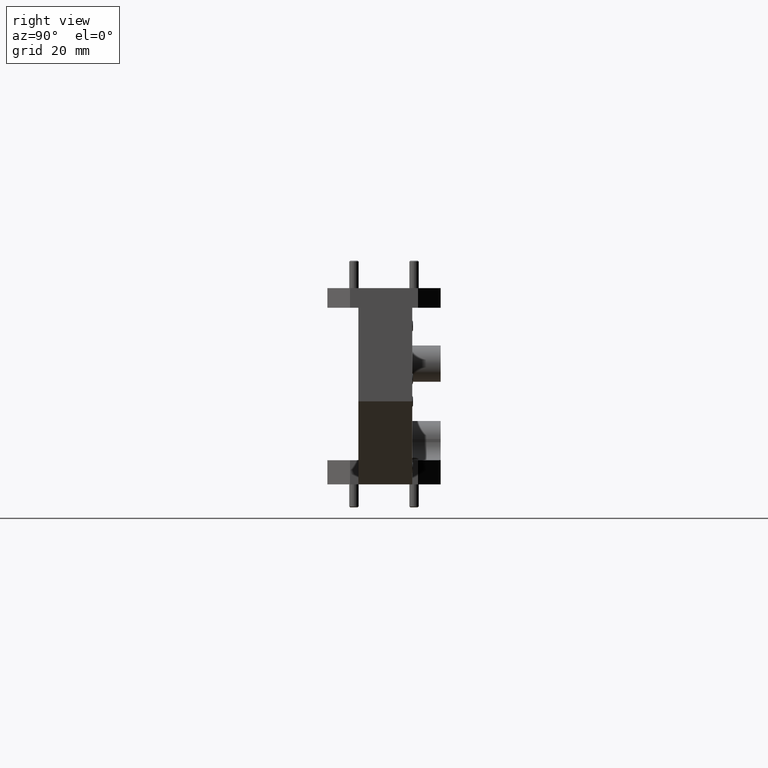
[diagram: clean part render]
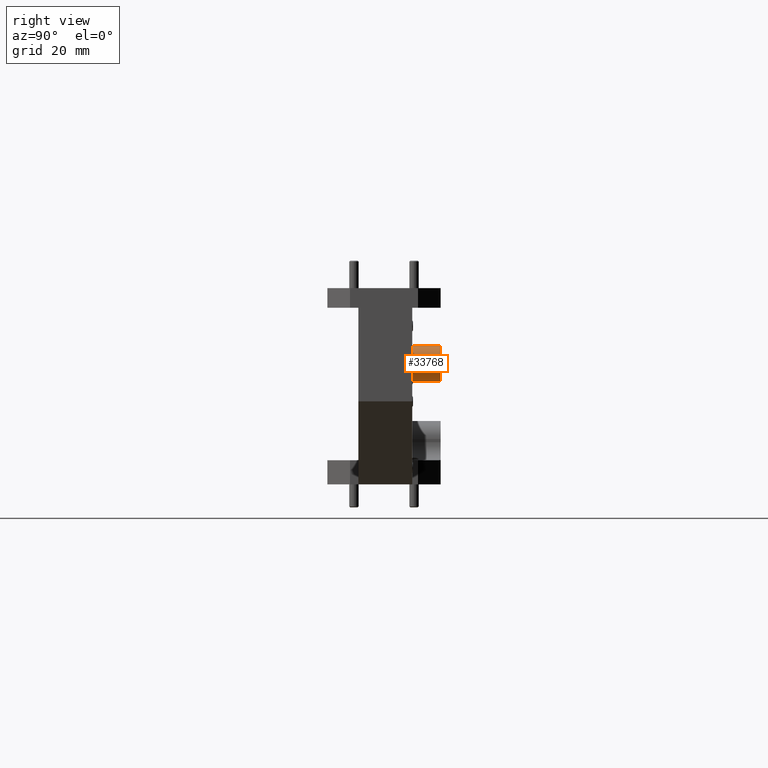
[diagram: same view with one face highlighted and labeled with its STEP entity id]
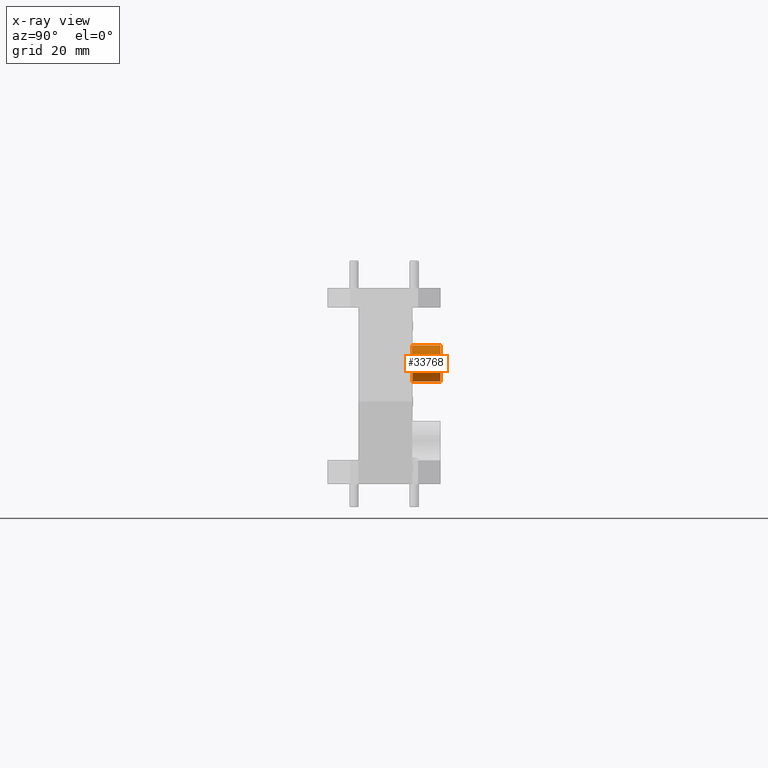
[diagram: x-ray of the same camera — body ghosted, the highlighted face saturated]
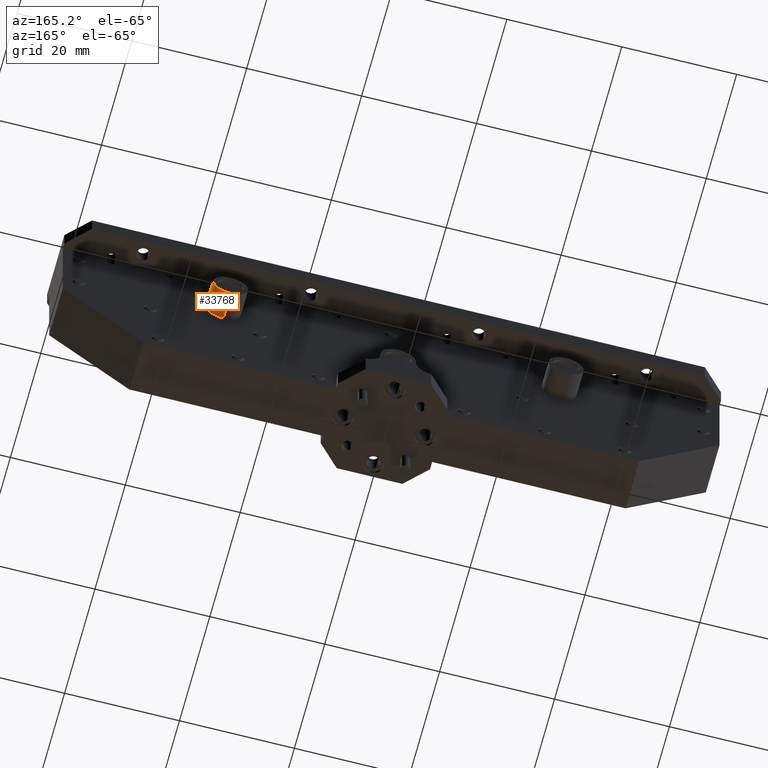
[diagram: same view with one face highlighted and labeled with its STEP entity id]
A machine part, right view. The second image highlights one B-rep face of the part: STEP entity #33768.
The next image is the same camera in x-ray: the body ghosted, the highlighted face saturated — about 0% of this face is hidden behind the body in this view.
A second angle (auxiliary view) of the same face is appended — the face is thin or edge-on in the first view.
In plain terms, the highlighted cylindrical surface (edge-blend (fillet) strip) has radius 3.048 mm, axis along (-0, -1, -0).
Its self-contained STEP definition (entity closure, byte-faithful):
#2250 = CARTESIAN_POINT ( 'NONE',  ( 1.149999999999999900, 0.3380000000000000800, -0.1250000000000001700 ) ) ;
#7924 = ORIENTED_EDGE ( 'NONE', *, *, #43435, .T. ) ;
#10657 = DIRECTION ( 'NONE',  ( 0.0000000000000000000, 0.0000000000000000000, -1.000000000000000000 ) ) ;
#12620 = CARTESIAN_POINT ( 'NONE',  ( 1.149999999999999900, 0.1499999999999999700, -0.1250000000000001700 ) ) ;
#13054 = CARTESIAN_POINT ( 'NONE',  ( 1.149999999999999900, 0.6774112549695444600, -0.1250000000000001700 ) ) ;
#13782 = DIRECTION ( 'NONE',  ( 0.0000000000000000000, 0.0000000000000000000, -1.000000000000000000 ) ) ;
#14879 = CIRCLE ( 'NONE', #53319, 0.1200000000000005900 ) ;
#15264 = EDGE_CURVE ( 'NONE', #50934, #45033, #26454, .T. ) ;
#15726 = ORIENTED_EDGE ( 'NONE', *, *, #57739, .T. ) ;
#16874 = FACE_OUTER_BOUND ( 'NONE', #22644, .T. ) ;
#20995 = DIRECTION ( 'NONE',  ( 0.0000000000000000000, 0.0000000000000000000, -1.000000000000000000 ) ) ;
#22644 = EDGE_LOOP ( 'NONE', ( #15726, #54042, #7924, #59054 ) ) ;
#25594 = VECTOR ( 'NONE', #75050, 39.37007874015748100 ) ;
#26454 = LINE ( 'NONE', #76578, #57983 ) ;
#28630 = CYLINDRICAL_SURFACE ( 'NONE', #49717, 0.1200000000000005900 ) ;
#33768 = ADVANCED_FACE ( 'NONE', ( #16874 ), #28630, .T. ) ;
#35299 = EDGE_CURVE ( 'NONE', #87005, #52104, #89701, .T. ) ;
#43435 = EDGE_CURVE ( 'NONE', #45033, #52104, #14879, .T. ) ;
#45033 = VERTEX_POINT ( 'NONE', #82645 ) ;
#45354 = CARTESIAN_POINT ( 'NONE',  ( 1.149999999999999900, 0.3380000000000000800, -0.2450000000000007700 ) ) ;
#49717 = AXIS2_PLACEMENT_3D ( 'NONE', #13054, #80510, #13782 ) ;
#50934 = VERTEX_POINT ( 'NONE', #87165 ) ;
#52104 = VERTEX_POINT ( 'NONE', #78599 ) ;
#53312 = DIRECTION ( 'NONE',  ( -0.0000000000000000000, -1.000000000000000000, -0.0000000000000000000 ) ) ;
#53319 = AXIS2_PLACEMENT_3D ( 'NONE', #12620, #71442, #20995 ) ;
#54042 = ORIENTED_EDGE ( 'NONE', *, *, #15264, .T. ) ;
#57739 = EDGE_CURVE ( 'NONE', #87005, #50934, #81547, .T. ) ;
#57983 = VECTOR ( 'NONE', #53312, 39.37007874015748100 ) ;
#58136 = CARTESIAN_POINT ( 'NONE',  ( 1.149999999999999900, 0.6774112549695444600, -0.2450000000000007700 ) ) ;
#59054 = ORIENTED_EDGE ( 'NONE', *, *, #35299, .F. ) ;
#60947 = DIRECTION ( 'NONE',  ( 0.0000000000000000000, -1.000000000000000000, 0.0000000000000000000 ) ) ;
#71442 = DIRECTION ( 'NONE',  ( -0.0000000000000000000, 1.000000000000000000, -0.0000000000000000000 ) ) ;
#75050 = DIRECTION ( 'NONE',  ( -0.0000000000000000000, -1.000000000000000000, -0.0000000000000000000 ) ) ;
#76578 = CARTESIAN_POINT ( 'NONE',  ( 1.149999999999999900, 0.6774112549695444600, -0.004999999999999570800 ) ) ;
#78599 = CARTESIAN_POINT ( 'NONE',  ( 1.149999999999999900, 0.1499999999999999700, -0.2450000000000007700 ) ) ;
#80510 = DIRECTION ( 'NONE',  ( -0.0000000000000000000, -1.000000000000000000, -0.0000000000000000000 ) ) ;
#81547 = CIRCLE ( 'NONE', #97069, 0.1200000000000005900 ) ;
#82645 = CARTESIAN_POINT ( 'NONE',  ( 1.149999999999999900, 0.1499999999999999700, -0.004999999999999570800 ) ) ;
#87005 = VERTEX_POINT ( 'NONE', #45354 ) ;
#87165 = CARTESIAN_POINT ( 'NONE',  ( 1.149999999999999900, 0.3380000000000000800, -0.004999999999999570800 ) ) ;
#89701 = LINE ( 'NONE', #58136, #25594 ) ;
#97069 = AXIS2_PLACEMENT_3D ( 'NONE', #2250, #60947, #10657 ) ;